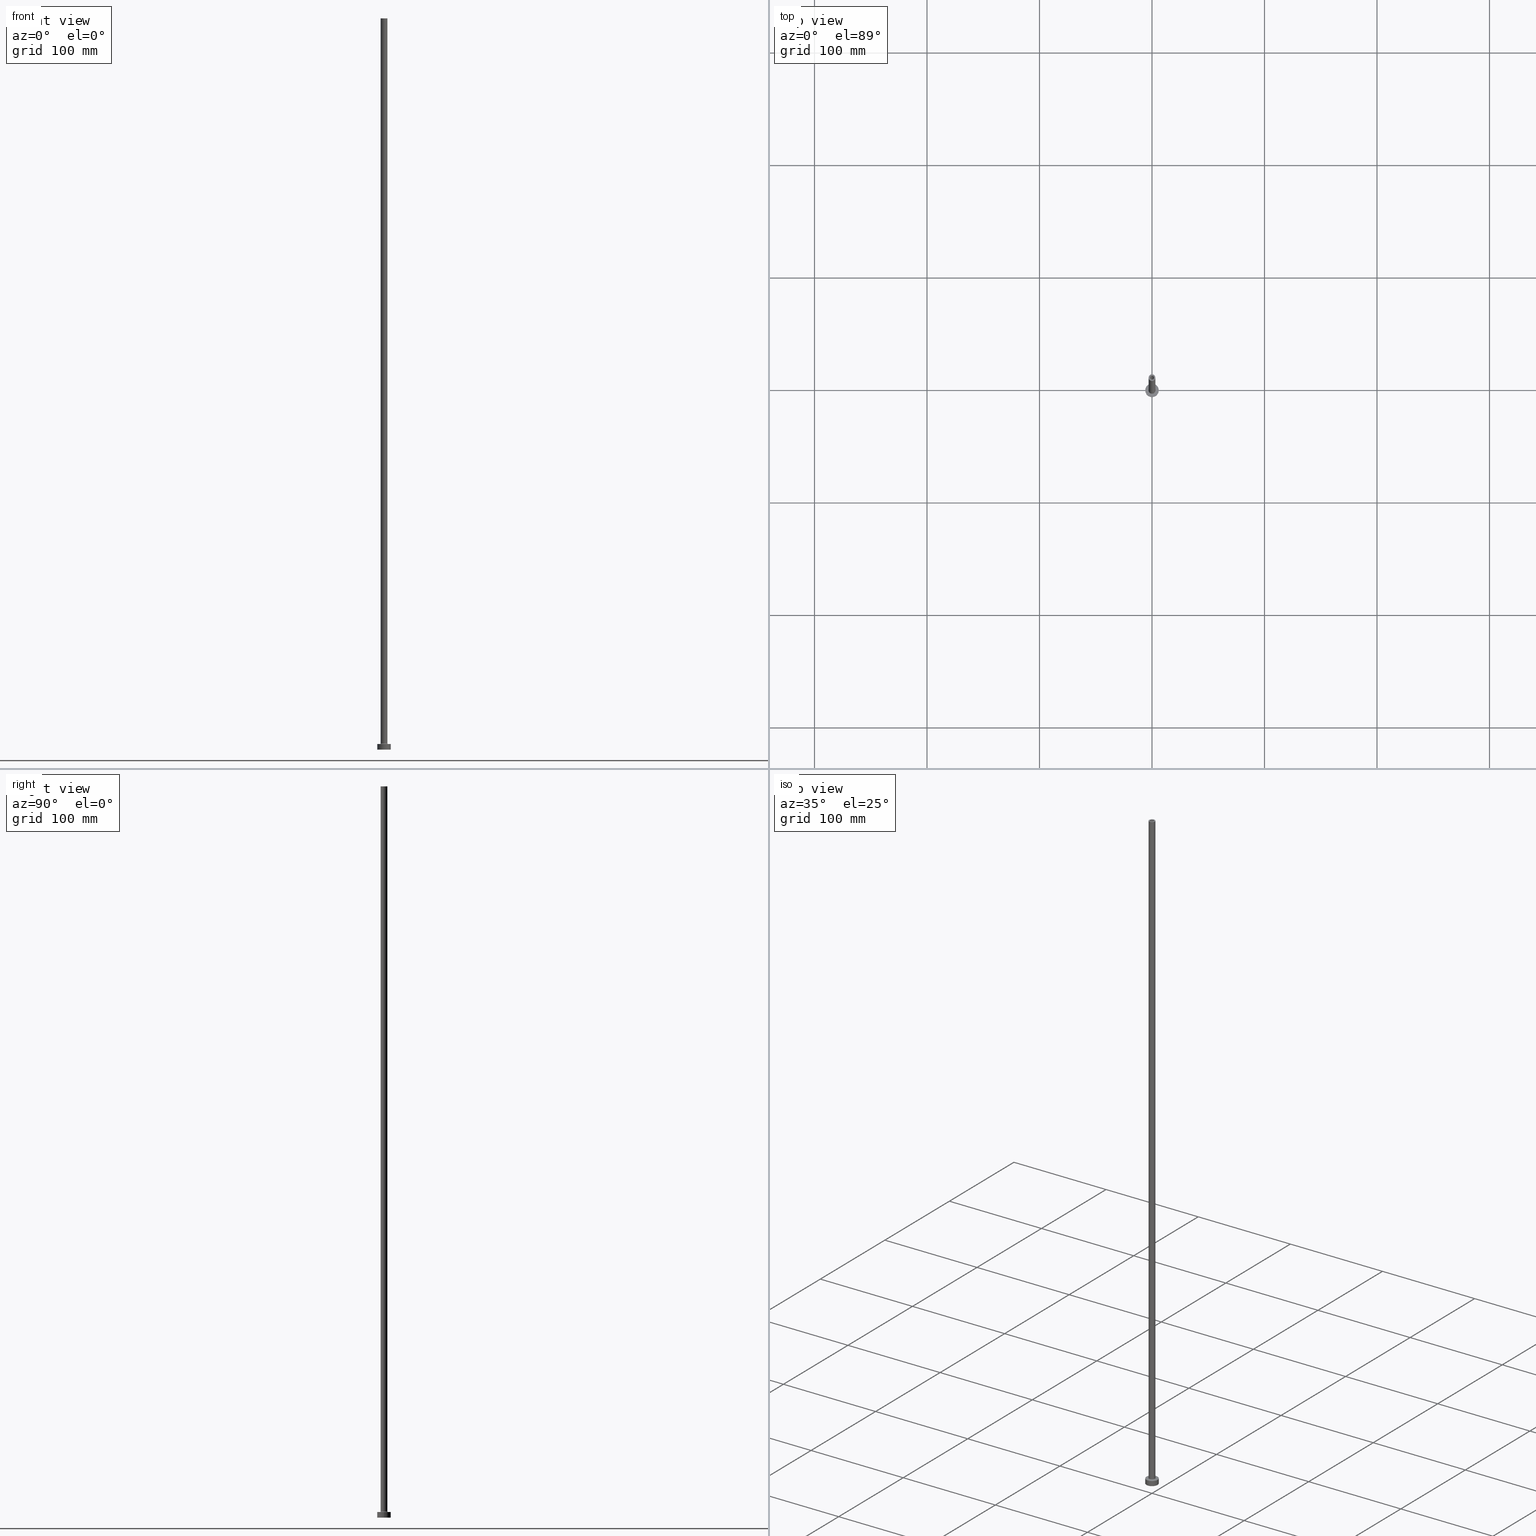
[diagram: canonical four-view strip — front | top / right | iso, engineering-drawing reading convention]
A machine part, canonical four-view strip (front | top / right | iso — engineering-drawing reading convention). The complete STEP part file that produces these views, byte-faithful:
ISO-10303-21;
HEADER;
FILE_DESCRIPTION (( 'STEP AP203' ),
    '1' );
FILE_NAME ('24ba.STEP',
    '2023-02-13T17:48:13',
    ( '' ),
    ( '' ),
    'SwSTEP 2.0',
    'SolidWorks 2019',
    '' );
FILE_SCHEMA (( 'CONFIG_CONTROL_DESIGN' ));
ENDSEC;

DATA;
#1 = CARTESIAN_POINT ( 'NONE',  ( 6.000000000000000888, 7.347880794884120722E-16, 5.000000000000000000 ) ) ;
#2 = CARTESIAN_POINT ( 'NONE',  ( 1.750000000000000000, 2.143131898507868297E-16, 605.0000000000000000 ) ) ;
#3 = EDGE_CURVE ( 'NONE', #349, #273, #200, .T. ) ;
#4 = AXIS2_PLACEMENT_3D ( 'NONE', #12, #399, #224 ) ;
#5 = DIRECTION ( 'NONE',  ( 0.000000000000000000, -1.000000000000000000, 0.000000000000000000 ) ) ;
#6 = CARTESIAN_POINT ( 'NONE',  ( 0.000000000000000000, 0.000000000000000000, 0.000000000000000000 ) ) ;
#7 = COORDINATED_UNIVERSAL_TIME_OFFSET ( 1, 0, .AHEAD. ) ;
#8 = CIRCLE ( 'NONE', #410, 3.500000000000000444 ) ;
#9 = EDGE_CURVE ( 'NONE', #301, #290, #303, .T. ) ;
#10 = CARTESIAN_POINT ( 'NONE',  ( 3.000000000000000444, 3.673940397442059868E-16, 5.499999999999949374 ) ) ;
#11 = LOCAL_TIME ( 18, 48, 13.00000000000000000, #7 ) ;
#12 = CARTESIAN_POINT ( 'NONE',  ( -3.500000000000000444, 4.286263797015737088E-16, 5.499999999999949374 ) ) ;
#13 = PERSON_AND_ORGANIZATION_ROLE ( 'classification_officer' ) ;
#14 = DIRECTION ( 'NONE',  ( 0.000000000000000000, 0.000000000000000000, 1.000000000000000000 ) ) ;
#15 = EDGE_LOOP ( 'NONE', ( #196, #319, #89, #237 ) ) ;
#16 = DIRECTION ( 'NONE',  ( -1.000000000000000000, 0.000000000000000000, 0.000000000000000000 ) ) ;
#17 = PRODUCT ( '24ba', '24ba', '', ( #415 ) ) ;
#18 = CARTESIAN_POINT ( 'NONE',  ( 0.000000000000000000, 0.000000000000000000, 5.000000000000000000 ) ) ;
#19 = VERTEX_POINT ( 'NONE', #180 ) ;
#20 = COORDINATED_UNIVERSAL_TIME_OFFSET ( 1, 0, .AHEAD. ) ;
#21 = DIRECTION ( 'NONE',  ( 1.000000000000000000, 0.000000000000000000, -0.000000000000000000 ) ) ;
#22 = EDGE_LOOP ( 'NONE', ( #136, #112 ) ) ;
#23 = ADVANCED_FACE ( 'NONE', ( #85 ), #421, .F. ) ;
#24 = AXIS2_PLACEMENT_3D ( 'NONE', #342, #308, #382 ) ;
#25 =( NAMED_UNIT ( * ) PLANE_ANGLE_UNIT ( ) SI_UNIT ( $, .RADIAN. ) );
#26 = EDGE_LOOP ( 'NONE', ( #210, #135, #245, #260 ) ) ;
#27 = VERTEX_POINT ( 'NONE', #461 ) ;
#28 = PERSON_AND_ORGANIZATION ( #171, #414 ) ;
#29 = CC_DESIGN_PERSON_AND_ORGANIZATION_ASSIGNMENT ( #84, #292, ( #436 ) ) ;
#30 = CARTESIAN_POINT ( 'NONE',  ( 0.000000000000000000, 0.000000000000000000, 5.499999999999949374 ) ) ;
#31 = CARTESIAN_POINT ( 'NONE',  ( -1.750000000000000000, 0.000000000000000000, 605.0000000000000000 ) ) ;
#32 = CYLINDRICAL_SURFACE ( 'NONE', #99, 1.750000000000000000 ) ;
#33 = LOCAL_TIME ( 18, 48, 13.00000000000000000, #212 ) ;
#34 = DIRECTION ( 'NONE',  ( 1.000000000000000000, 0.000000000000000000, 0.000000000000000000 ) ) ;
#35 = CARTESIAN_POINT ( 'NONE',  ( 0.000000000000000000, 0.000000000000000000, 0.000000000000000000 ) ) ;
#36 = ADVANCED_FACE ( 'NONE', ( #285, #393 ), #80, .T. ) ;
#37 = DIRECTION ( 'NONE',  ( 0.000000000000000000, 0.000000000000000000, 1.000000000000000000 ) ) ;
#38 = CARTESIAN_POINT ( 'NONE',  ( 0.000000000000000000, 0.000000000000000000, 0.000000000000000000 ) ) ;
#39 = AXIS2_PLACEMENT_3D ( 'NONE', #442, #14, #159 ) ;
#40 = VECTOR ( 'NONE', #44, 1000.000000000000000 ) ;
#41 = CARTESIAN_POINT ( 'NONE',  ( 3.000000000000000444, 3.673940397442059868E-16, 650.0000000000000000 ) ) ;
#42 = DIRECTION ( 'NONE',  ( 0.000000000000000000, 0.000000000000000000, 1.000000000000000000 ) ) ;
#43 = VERTEX_POINT ( 'NONE', #71 ) ;
#44 = DIRECTION ( 'NONE',  ( 0.000000000000000000, 0.000000000000000000, -1.000000000000000000 ) ) ;
#45 = EDGE_CURVE ( 'NONE', #19, #443, #70, .T. ) ;
#46 = PERSON_AND_ORGANIZATION ( #171, #414 ) ;
#47 = DIRECTION ( 'NONE',  ( 0.000000000000000000, 0.000000000000000000, 1.000000000000000000 ) ) ;
#48 = ORIENTED_EDGE ( 'NONE', *, *, #352, .F. ) ;
#49 = FACE_OUTER_BOUND ( 'NONE', #358, .T. ) ;
#50 = CARTESIAN_POINT ( 'NONE',  ( -1.899999999999999911, 0.000000000000000000, 0.000000000000000000 ) ) ;
#51 = CARTESIAN_POINT ( 'NONE',  ( 0.000000000000000000, 0.000000000000000000, 605.0000000000000000 ) ) ;
#52 = VECTOR ( 'NONE', #250, 1000.000000000000000 ) ;
#53 = FACE_OUTER_BOUND ( 'NONE', #117, .T. ) ;
#54 = ORIENTED_EDGE ( 'NONE', *, *, #367, .T. ) ;
#55 = DIRECTION ( 'NONE',  ( 0.000000000000000000, 0.000000000000000000, -1.000000000000000000 ) ) ;
#56 = CC_DESIGN_PERSON_AND_ORGANIZATION_ASSIGNMENT ( #361, #13, ( #152 ) ) ;
#57 = CALENDAR_DATE ( 2023, 13, 2 ) ;
#58 = DIRECTION ( 'NONE',  ( 1.000000000000000000, 0.000000000000000000, 0.000000000000000000 ) ) ;
#59 = AXIS2_PLACEMENT_3D ( 'NONE', #339, #102, #207 ) ;
#60 = EDGE_CURVE ( 'NONE', #43, #217, #189, .T. ) ;
#61 = AXIS2_PLACEMENT_3D ( 'NONE', #241, #154, #278 ) ;
#62 = DIRECTION ( 'NONE',  ( 1.000000000000000000, 0.000000000000000000, 0.000000000000000000 ) ) ;
#63 = DIRECTION ( 'NONE',  ( -0.000000000000000000, -0.000000000000000000, -1.000000000000000000 ) ) ;
#64 = AXIS2_PLACEMENT_3D ( 'NONE', #324, #181, #119 ) ;
#65 = ADVANCED_FACE ( 'NONE', ( #148 ), #386, .T. ) ;
#66 = DIRECTION ( 'NONE',  ( 0.000000000000000000, 0.000000000000000000, -1.000000000000000000 ) ) ;
#67 = VERTEX_POINT ( 'NONE', #1 ) ;
#68 =( LENGTH_UNIT ( ) NAMED_UNIT ( * ) SI_UNIT ( .MILLI., .METRE. ) );
#69 = ORIENTED_EDGE ( 'NONE', *, *, #93, .T. ) ;
#70 = CIRCLE ( 'NONE', #167, 1.750000000000000000 ) ;
#71 = CARTESIAN_POINT ( 'NONE',  ( -6.000000000000000888, 0.000000000000000000, 0.000000000000000000 ) ) ;
#72 = CC_DESIGN_APPROVAL ( #139, ( #436 ) ) ;
#73 = APPROVAL_ROLE ( '' ) ;
#74 = EDGE_CURVE ( 'NONE', #331, #273, #8, .T. ) ;
#75 = CARTESIAN_POINT ( 'NONE',  ( 0.000000000000000000, 0.000000000000000000, 650.0000000000000000 ) ) ;
#76 = CARTESIAN_POINT ( 'NONE',  ( 0.000000000000000000, 0.000000000000000000, 0.000000000000000000 ) ) ;
#77 = DIRECTION ( 'NONE',  ( -0.000000000000000000, -0.000000000000000000, -1.000000000000000000 ) ) ;
#78 = DIRECTION ( 'NONE',  ( 1.000000000000000000, 0.000000000000000000, 0.000000000000000000 ) ) ;
#79 = SHAPE_DEFINITION_REPRESENTATION ( #94, #166 ) ;
#80 = PLANE ( 'NONE',  #158 ) ;
#81 = CIRCLE ( 'NONE', #197, 3.500000000000000444 ) ;
#82 = CC_DESIGN_DATE_AND_TIME_ASSIGNMENT ( #429, #209, ( #400 ) ) ;
#83 = AXIS2_PLACEMENT_3D ( 'NONE', #345, #385, #34 ) ;
#84 = PERSON_AND_ORGANIZATION ( #171, #414 ) ;
#85 = FACE_OUTER_BOUND ( 'NONE', #341, .T. ) ;
#86 = DIRECTION ( 'NONE',  ( -0.000000000000000000, -0.000000000000000000, -1.000000000000000000 ) ) ;
#87 = EDGE_LOOP ( 'NONE', ( #131, #459, #145, #430 ) ) ;
#88 = CYLINDRICAL_SURFACE ( 'NONE', #306, 6.000000000000000888 ) ;
#89 = ORIENTED_EDGE ( 'NONE', *, *, #373, .T. ) ;
#90 = FACE_OUTER_BOUND ( 'NONE', #248, .T. ) ;
#91 = CIRCLE ( 'NONE', #406, 6.000000000000000888 ) ;
#92 = PERSON_AND_ORGANIZATION ( #171, #414 ) ;
#93 = EDGE_CURVE ( 'NONE', #19, #376, #95, .T. ) ;
#94 = PRODUCT_DEFINITION_SHAPE ( 'NONE', 'NONE',  #400 ) ;
#95 = LINE ( 'NONE', #440, #249 ) ;
#96 = CLOSED_SHELL ( 'NONE', ( #453, #243, #271, #65, #362, #389, #163, #379, #229, #36, #23, #408, #129, #225 ) ) ;
#97 = DATE_AND_TIME ( #156, #138 ) ;
#98 = EDGE_CURVE ( 'NONE', #443, #456, #256, .T. ) ;
#99 = AXIS2_PLACEMENT_3D ( 'NONE', #424, #177, #247 ) ;
#100 = APPROVAL_PERSON_ORGANIZATION ( #274, #295, #73 ) ;
#101 = FACE_OUTER_BOUND ( 'NONE', #140, .T. ) ;
#102 = DIRECTION ( 'NONE',  ( 0.000000000000000000, 0.000000000000000000, 1.000000000000000000 ) ) ;
#103 = PRODUCT_RELATED_PRODUCT_CATEGORY ( 'detail', '', ( #17 ) ) ;
#104 = ORIENTED_EDGE ( 'NONE', *, *, #170, .F. ) ;
#105 = VERTEX_POINT ( 'NONE', #50 ) ;
#106 = DIRECTION ( 'NONE',  ( 0.000000000000000000, 0.000000000000000000, -1.000000000000000000 ) ) ;
#107 = ORIENTED_EDGE ( 'NONE', *, *, #113, .T. ) ;
#108 = ORIENTED_EDGE ( 'NONE', *, *, #60, .F. ) ;
#109 = CARTESIAN_POINT ( 'NONE',  ( -3.000000000000000444, 0.000000000000000000, 5.499999999999949374 ) ) ;
#110 = CARTESIAN_POINT ( 'NONE',  ( -1.899999999999999911, 0.000000000000000000, 605.0000000000000000 ) ) ;
#111 = CYLINDRICAL_SURFACE ( 'NONE', #344, 3.000000000000000444 ) ;
#112 = ORIENTED_EDGE ( 'NONE', *, *, #74, .T. ) ;
#113 = EDGE_CURVE ( 'NONE', #458, #27, #326, .T. ) ;
#114 = LINE ( 'NONE', #387, #52 ) ;
#115 = AXIS2_PLACEMENT_3D ( 'NONE', #187, #37, #78 ) ;
#116 = DIRECTION ( 'NONE',  ( -0.000000000000000000, -0.000000000000000000, -1.000000000000000000 ) ) ;
#117 = EDGE_LOOP ( 'NONE', ( #173, #325 ) ) ;
#118 = FACE_OUTER_BOUND ( 'NONE', #183, .T. ) ;
#119 = DIRECTION ( 'NONE',  ( 1.000000000000000000, 0.000000000000000000, 0.000000000000000000 ) ) ;
#120 = APPROVAL_DATE_TIME ( #433, #139 ) ;
#121 = CARTESIAN_POINT ( 'NONE',  ( 0.000000000000000000, 0.000000000000000000, 650.0000000000000000 ) ) ;
#122 = LINE ( 'NONE', #284, #40 ) ;
#123 = AXIS2_PLACEMENT_3D ( 'NONE', #30, #371, #62 ) ;
#124 = UNCERTAINTY_MEASURE_WITH_UNIT (LENGTH_MEASURE( 1.000000000000000082E-05 ), #68, 'distance_accuracy_value', 'NONE');
#125 = CARTESIAN_POINT ( 'NONE',  ( 0.000000000000000000, 0.000000000000000000, 605.0000000000000000 ) ) ;
#126 = ORIENTED_EDGE ( 'NONE', *, *, #45, .F. ) ;
#127 = DIRECTION ( 'NONE',  ( -0.000000000000000000, -0.000000000000000000, -1.000000000000000000 ) ) ;
#128 = FACE_BOUND ( 'NONE', #265, .T. ) ;
#129 = ADVANCED_FACE ( 'NONE', ( #128, #190 ), #259, .F. ) ;
#130 = CARTESIAN_POINT ( 'NONE',  ( 0.000000000000000000, 0.000000000000000000, 605.0000000000000000 ) ) ;
#131 = ORIENTED_EDGE ( 'NONE', *, *, #334, .F. ) ;
#132 = LOCAL_TIME ( 18, 48, 13.00000000000000000, #366 ) ;
#133 = CARTESIAN_POINT ( 'NONE',  ( 0.000000000000000000, 0.000000000000000000, 5.000000000000000000 ) ) ;
#134 = PLANE ( 'NONE',  #236 ) ;
#135 = ORIENTED_EDGE ( 'NONE', *, *, #45, .T. ) ;
#136 = ORIENTED_EDGE ( 'NONE', *, *, #216, .T. ) ;
#137 = CIRCLE ( 'NONE', #83, 3.000000000000000444 ) ;
#138 = LOCAL_TIME ( 18, 48, 13.00000000000000000, #20 ) ;
#139 = APPROVAL ( #186, 'NEUR�EN�' ) ;
#140 = EDGE_LOOP ( 'NONE', ( #107, #54, #454, #449 ) ) ;
#141 = ORIENTED_EDGE ( 'NONE', *, *, #352, .T. ) ;
#142 = CIRCLE ( 'NONE', #395, 1.750000000000000000 ) ;
#143 = CARTESIAN_POINT ( 'NONE',  ( 0.000000000000000000, 0.000000000000000000, 650.0000000000000000 ) ) ;
#144 = DIRECTION ( 'NONE',  ( 1.000000000000000000, 0.000000000000000000, 0.000000000000000000 ) ) ;
#145 = ORIENTED_EDGE ( 'NONE', *, *, #233, .T. ) ;
#146 = CC_DESIGN_PERSON_AND_ORGANIZATION_ASSIGNMENT ( #46, #323, ( #400 ) ) ;
#147 = ORIENTED_EDGE ( 'NONE', *, *, #330, .T. ) ;
#148 = FACE_OUTER_BOUND ( 'NONE', #338, .T. ) ;
#149 = ORIENTED_EDGE ( 'NONE', *, *, #238, .F. ) ;
#150 = DIRECTION ( 'NONE',  ( -0.000000000000000000, -0.000000000000000000, -1.000000000000000000 ) ) ;
#151 = CARTESIAN_POINT ( 'NONE',  ( 3.000000000000000444, 3.673940397442059868E-16, 650.0000000000000000 ) ) ;
#152 = SECURITY_CLASSIFICATION ( '', '', #401 ) ;
#153 = EDGE_CURVE ( 'NONE', #27, #458, #168, .T. ) ;
#154 = DIRECTION ( 'NONE',  ( 0.000000000000000000, 0.000000000000000000, 1.000000000000000000 ) ) ;
#155 = FACE_OUTER_BOUND ( 'NONE', #87, .T. ) ;
#156 = CALENDAR_DATE ( 2023, 13, 2 ) ;
#157 = EDGE_CURVE ( 'NONE', #283, #67, #174, .T. ) ;
#158 = AXIS2_PLACEMENT_3D ( 'NONE', #222, #220, #381 ) ;
#159 = DIRECTION ( 'NONE',  ( 1.000000000000000000, 0.000000000000000000, -0.000000000000000000 ) ) ;
#160 = ORIENTED_EDGE ( 'NONE', *, *, #444, .F. ) ;
#161 = CIRCLE ( 'NONE', #272, 1.899999999999999911 ) ;
#162 = CIRCLE ( 'NONE', #64, 3.000000000000000444 ) ;
#163 = ADVANCED_FACE ( 'NONE', ( #332, #53 ), #134, .T. ) ;
#164 = DATE_AND_TIME ( #57, #132 ) ;
#165 = MANIFOLD_SOLID_BREP ( 'Odebrat vysunut�m4', #96 ) ;
#166 = ADVANCED_BREP_SHAPE_REPRESENTATION ( '24ba', ( #165, #59 ), #253 ) ;
#167 = AXIS2_PLACEMENT_3D ( 'NONE', #418, #42, #357 ) ;
#168 = CIRCLE ( 'NONE', #374, 1.899999999999999911 ) ;
#169 = CIRCLE ( 'NONE', #115, 6.000000000000000888 ) ;
#170 = EDGE_CURVE ( 'NONE', #105, #262, #161, .T. ) ;
#171 = PERSON ( 'NEUR�EN�', 'NEUR�EN�', 'NEUR�EN�', ('NEUR�EN�'), ('NEUR�EN�'), ('NEUR�EN�') ) ;
#172 = ORIENTED_EDGE ( 'NONE', *, *, #153, .T. ) ;
#173 = ORIENTED_EDGE ( 'NONE', *, *, #157, .T. ) ;
#174 = CIRCLE ( 'NONE', #447, 6.000000000000000888 ) ;
#175 = CC_DESIGN_PERSON_AND_ORGANIZATION_ASSIGNMENT ( #28, #457, ( #17 ) ) ;
#176 = LOCAL_TIME ( 18, 48, 13.00000000000000000, #317 ) ;
#177 = DIRECTION ( 'NONE',  ( 0.000000000000000000, 0.000000000000000000, -1.000000000000000000 ) ) ;
#178 = DIRECTION ( 'NONE',  ( 1.000000000000000000, 0.000000000000000000, 0.000000000000000000 ) ) ;
#179 = DATE_AND_TIME ( #348, #33 ) ;
#180 = CARTESIAN_POINT ( 'NONE',  ( 1.750000000000000000, 2.143131898507868297E-16, 650.0000000000000000 ) ) ;
#181 = DIRECTION ( 'NONE',  ( 0.000000000000000000, 0.000000000000000000, 1.000000000000000000 ) ) ;
#182 = DIRECTION ( 'NONE',  ( -0.000000000000000000, -0.000000000000000000, -1.000000000000000000 ) ) ;
#183 = EDGE_LOOP ( 'NONE', ( #108, #294 ) ) ;
#184 = DIRECTION ( 'NONE',  ( 0.000000000000000000, 0.000000000000000000, 1.000000000000000000 ) ) ;
#185 = CIRCLE ( 'NONE', #355, 1.750000000000000000 ) ;
#186 = APPROVAL_STATUS ( 'not_yet_approved' ) ;
#187 = CARTESIAN_POINT ( 'NONE',  ( 0.000000000000000000, 0.000000000000000000, 5.000000000000000000 ) ) ;
#188 = DESIGN_CONTEXT ( 'detailed design', #300, 'design' ) ;
#189 = CIRCLE ( 'NONE', #313, 6.000000000000000888 ) ;
#190 = FACE_OUTER_BOUND ( 'NONE', #270, .T. ) ;
#191 = CC_DESIGN_DATE_AND_TIME_ASSIGNMENT ( #97, #445, ( #152 ) ) ;
#192 = DIRECTION ( 'NONE',  ( -0.000000000000000000, -0.000000000000000000, -1.000000000000000000 ) ) ;
#193 = DIRECTION ( 'NONE',  ( 0.000000000000000000, 0.000000000000000000, -1.000000000000000000 ) ) ;
#194 = CYLINDRICAL_SURFACE ( 'NONE', #363, 6.000000000000000888 ) ;
#195 = DIRECTION ( 'NONE',  ( 1.000000000000000000, 0.000000000000000000, 0.000000000000000000 ) ) ;
#196 = ORIENTED_EDGE ( 'NONE', *, *, #310, .F. ) ;
#197 = AXIS2_PLACEMENT_3D ( 'NONE', #280, #116, #144 ) ;
#198 = AXIS2_PLACEMENT_3D ( 'NONE', #38, #184, #320 ) ;
#199 = ORIENTED_EDGE ( 'NONE', *, *, #3, .F. ) ;
#200 = CIRCLE ( 'NONE', #261, 0.5000000000000004441 ) ;
#201 = EDGE_CURVE ( 'NONE', #301, #349, #275, .T. ) ;
#202 = DIRECTION ( 'NONE',  ( 1.000000000000000000, 0.000000000000000000, 0.000000000000000000 ) ) ;
#203 = CC_DESIGN_APPROVAL ( #428, ( #152 ) ) ;
#204 = ORIENTED_EDGE ( 'NONE', *, *, #201, .T. ) ;
#205 = CYLINDRICAL_SURFACE ( 'NONE', #337, 1.899999999999999911 ) ;
#206 = CARTESIAN_POINT ( 'NONE',  ( 0.000000000000000000, 0.000000000000000000, 610.3740115370177364 ) ) ;
#207 = DIRECTION ( 'NONE',  ( 1.000000000000000000, 0.000000000000000000, 0.000000000000000000 ) ) ;
#208 = AXIS2_PLACEMENT_3D ( 'NONE', #75, #213, #314 ) ;
#209 = DATE_TIME_ROLE ( 'creation_date' ) ;
#210 = ORIENTED_EDGE ( 'NONE', *, *, #93, .F. ) ;
#211 = CIRCLE ( 'NONE', #24, 1.750000000000000000 ) ;
#212 = COORDINATED_UNIVERSAL_TIME_OFFSET ( 1, 0, .AHEAD. ) ;
#213 = DIRECTION ( 'NONE',  ( -0.000000000000000000, -0.000000000000000000, -1.000000000000000000 ) ) ;
#214 = ORIENTED_EDGE ( 'NONE', *, *, #255, .T. ) ;
#215 = CARTESIAN_POINT ( 'NONE',  ( -6.000000000000000888, 0.000000000000000000, 5.000000000000000000 ) ) ;
#216 = EDGE_CURVE ( 'NONE', #273, #331, #81, .T. ) ;
#217 = VERTEX_POINT ( 'NONE', #417 ) ;
#218 = DIRECTION ( 'NONE',  ( 0.000000000000000000, 0.000000000000000000, 1.000000000000000000 ) ) ;
#219 = APPROVAL_DATE_TIME ( #179, #295 ) ;
#220 = DIRECTION ( 'NONE',  ( 0.000000000000000000, 0.000000000000000000, 1.000000000000000000 ) ) ;
#221 = CIRCLE ( 'NONE', #123, 3.000000000000000444 ) ;
#222 = CARTESIAN_POINT ( 'NONE',  ( 0.000000000000000000, 0.000000000000000000, 650.0000000000000000 ) ) ;
#223 = ORIENTED_EDGE ( 'NONE', *, *, #201, .F. ) ;
#224 = DIRECTION ( 'NONE',  ( -1.000000000000000000, 1.224646799147354440E-16, 0.000000000000000000 ) ) ;
#225 = ADVANCED_FACE ( 'NONE', ( #240 ), #32, .F. ) ;
#226 = CYLINDRICAL_SURFACE ( 'NONE', #423, 1.899999999999999911 ) ;
#227 = CIRCLE ( 'NONE', #4, 0.4999999999999995559 ) ;
#228 = DIRECTION ( 'NONE',  ( 0.000000000000000000, 0.000000000000000000, 1.000000000000000000 ) ) ;
#229 = ADVANCED_FACE ( 'NONE', ( #322 ), #111, .T. ) ;
#230 = APPROVAL_ROLE ( '' ) ;
#231 = DIRECTION ( 'NONE',  ( 0.000000000000000000, 0.000000000000000000, 1.000000000000000000 ) ) ;
#232 = DIRECTION ( 'NONE',  ( 1.000000000000000000, 0.000000000000000000, 0.000000000000000000 ) ) ;
#233 = EDGE_CURVE ( 'NONE', #283, #43, #288, .T. ) ;
#234 = DIRECTION ( 'NONE',  ( -1.000000000000000000, 0.000000000000000000, 0.000000000000000000 ) ) ;
#235 = CARTESIAN_POINT ( 'NONE',  ( 0.000000000000000000, 0.000000000000000000, 605.0000000000000000 ) ) ;
#236 = AXIS2_PLACEMENT_3D ( 'NONE', #133, #228, #21 ) ;
#237 = ORIENTED_EDGE ( 'NONE', *, *, #233, .F. ) ;
#238 = EDGE_CURVE ( 'NONE', #349, #257, #137, .T. ) ;
#239 = ORIENTED_EDGE ( 'NONE', *, *, #216, .F. ) ;
#240 = FACE_OUTER_BOUND ( 'NONE', #26, .T. ) ;
#241 = CARTESIAN_POINT ( 'NONE',  ( 0.000000000000000000, 0.000000000000000000, 5.499999999999949374 ) ) ;
#242 = ORIENTED_EDGE ( 'NONE', *, *, #113, .F. ) ;
#243 = ADVANCED_FACE ( 'NONE', ( #101 ), #205, .F. ) ;
#244 = ORIENTED_EDGE ( 'NONE', *, *, #3, .T. ) ;
#245 = ORIENTED_EDGE ( 'NONE', *, *, #98, .T. ) ;
#246 = CARTESIAN_POINT ( 'NONE',  ( 0.000000000000000000, 0.000000000000000000, 5.499999999999949374 ) ) ;
#247 = DIRECTION ( 'NONE',  ( -1.000000000000000000, 0.000000000000000000, 0.000000000000000000 ) ) ;
#248 = EDGE_LOOP ( 'NONE', ( #412, #172, #437, #252 ) ) ;
#249 = VECTOR ( 'NONE', #446, 1000.000000000000000 ) ;
#250 = DIRECTION ( 'NONE',  ( 0.000000000000000000, 0.000000000000000000, -1.000000000000000000 ) ) ;
#251 = PERSON_AND_ORGANIZATION ( #171, #414 ) ;
#252 = ORIENTED_EDGE ( 'NONE', *, *, #170, .T. ) ;
#253 =( GEOMETRIC_REPRESENTATION_CONTEXT ( 3 ) GLOBAL_UNCERTAINTY_ASSIGNED_CONTEXT ( ( #124 ) ) GLOBAL_UNIT_ASSIGNED_CONTEXT ( ( #68, #25, #312 ) ) REPRESENTATION_CONTEXT ( 'NONE', 'WORKASPACE' ) );
#254 = CARTESIAN_POINT ( 'NONE',  ( -3.500000000000000444, 4.286263797015737088E-16, 4.999999999999975131 ) ) ;
#255 = EDGE_CURVE ( 'NONE', #257, #349, #221, .T. ) ;
#256 = LINE ( 'NONE', #335, #378 ) ;
#257 = VERTEX_POINT ( 'NONE', #109 ) ;
#258 = DIRECTION ( 'NONE',  ( 1.000000000000000000, 0.000000000000000000, 0.000000000000000000 ) ) ;
#259 = PLANE ( 'NONE',  #39 ) ;
#260 = ORIENTED_EDGE ( 'NONE', *, *, #439, .F. ) ;
#261 = AXIS2_PLACEMENT_3D ( 'NONE', #388, #5, #434 ) ;
#262 = VERTEX_POINT ( 'NONE', #420 ) ;
#263 = VECTOR ( 'NONE', #63, 1000.000000000000000 ) ;
#264 = CARTESIAN_POINT ( 'NONE',  ( 0.000000000000000000, 0.000000000000000000, 0.000000000000000000 ) ) ;
#265 = EDGE_LOOP ( 'NONE', ( #370, #409 ) ) ;
#266 = AXIS2_PLACEMENT_3D ( 'NONE', #121, #397, #347 ) ;
#267 = APPROVAL_DATE_TIME ( #164, #428 ) ;
#268 = EDGE_CURVE ( 'NONE', #443, #19, #211, .T. ) ;
#269 = ORIENTED_EDGE ( 'NONE', *, *, #74, .F. ) ;
#270 = EDGE_LOOP ( 'NONE', ( #242, #411 ) ) ;
#271 = ADVANCED_FACE ( 'NONE', ( #49 ), #333, .F. ) ;
#272 = AXIS2_PLACEMENT_3D ( 'NONE', #264, #368, #58 ) ;
#273 = VERTEX_POINT ( 'NONE', #422 ) ;
#274 = PERSON_AND_ORGANIZATION ( #171, #414 ) ;
#275 = LINE ( 'NONE', #41, #435 ) ;
#276 = APPROVAL_ROLE ( '' ) ;
#277 = ORIENTED_EDGE ( 'NONE', *, *, #321, .F. ) ;
#278 = DIRECTION ( 'NONE',  ( 1.000000000000000000, 0.000000000000000000, 0.000000000000000000 ) ) ;
#279 = EDGE_CURVE ( 'NONE', #262, #105, #451, .T. ) ;
#280 = CARTESIAN_POINT ( 'NONE',  ( 0.000000000000000000, 0.000000000000000000, 5.000000000000000000 ) ) ;
#281 = CARTESIAN_POINT ( 'NONE',  ( 0.000000000000000000, 0.000000000000000000, 5.000000000000000000 ) ) ;
#282 = AXIS2_PLACEMENT_3D ( 'NONE', #246, #390, #438 ) ;
#283 = VERTEX_POINT ( 'NONE', #215 ) ;
#284 = CARTESIAN_POINT ( 'NONE',  ( -1.899999999999999911, 0.000000000000000000, 610.3740115370177364 ) ) ;
#285 = FACE_BOUND ( 'NONE', #394, .T. ) ;
#286 = ORIENTED_EDGE ( 'NONE', *, *, #330, .F. ) ;
#287 = LINE ( 'NONE', #431, #293 ) ;
#288 = LINE ( 'NONE', #380, #327 ) ;
#289 = CALENDAR_DATE ( 2023, 13, 2 ) ;
#290 = VERTEX_POINT ( 'NONE', #291 ) ;
#291 = CARTESIAN_POINT ( 'NONE',  ( -3.000000000000000444, 0.000000000000000000, 650.0000000000000000 ) ) ;
#292 = PERSON_AND_ORGANIZATION_ROLE ( 'design_supplier' ) ;
#293 = VECTOR ( 'NONE', #86, 1000.000000000000000 ) ;
#294 = ORIENTED_EDGE ( 'NONE', *, *, #373, .F. ) ;
#295 = APPROVAL ( #383, 'NEUR�EN�' ) ;
#296 = DIRECTION ( 'NONE',  ( 1.000000000000000000, 0.000000000000000000, 0.000000000000000000 ) ) ;
#297 = APPROVAL_PERSON_ORGANIZATION ( #392, #139, #276 ) ;
#298 = DIRECTION ( 'NONE',  ( 0.000000000000000000, 0.000000000000000000, 1.000000000000000000 ) ) ;
#299 = ORIENTED_EDGE ( 'NONE', *, *, #9, .F. ) ;
#300 = APPLICATION_CONTEXT ( 'configuration controlled 3d designs of mechanical parts and assemblies' ) ;
#301 = VERTEX_POINT ( 'NONE', #151 ) ;
#302 = EDGE_CURVE ( 'NONE', #458, #105, #122, .T. ) ;
#303 = CIRCLE ( 'NONE', #266, 3.000000000000000444 ) ;
#304 = ORIENTED_EDGE ( 'NONE', *, *, #268, .F. ) ;
#305 = EDGE_LOOP ( 'NONE', ( #104, #452 ) ) ;
#306 = AXIS2_PLACEMENT_3D ( 'NONE', #360, #192, #328 ) ;
#307 = ORIENTED_EDGE ( 'NONE', *, *, #444, .T. ) ;
#308 = DIRECTION ( 'NONE',  ( 0.000000000000000000, 0.000000000000000000, 1.000000000000000000 ) ) ;
#309 = CYLINDRICAL_SURFACE ( 'NONE', #353, 1.750000000000000000 ) ;
#310 = EDGE_CURVE ( 'NONE', #67, #283, #169, .T. ) ;
#311 = ORIENTED_EDGE ( 'NONE', *, *, #98, .F. ) ;
#312 =( NAMED_UNIT ( * ) SI_UNIT ( $, .STERADIAN. ) SOLID_ANGLE_UNIT ( ) );
#313 = AXIS2_PLACEMENT_3D ( 'NONE', #35, #47, #178 ) ;
#314 = DIRECTION ( 'NONE',  ( -1.000000000000000000, 0.000000000000000000, 0.000000000000000000 ) ) ;
#315 = DIRECTION ( 'NONE',  ( 1.000000000000000000, 0.000000000000000000, 0.000000000000000000 ) ) ;
#316 = DIRECTION ( 'NONE',  ( -1.000000000000000000, 0.000000000000000000, 0.000000000000000000 ) ) ;
#317 = COORDINATED_UNIVERSAL_TIME_OFFSET ( 1, 0, .AHEAD. ) ;
#318 = APPROVAL_PERSON_ORGANIZATION ( #92, #428, #230 ) ;
#319 = ORIENTED_EDGE ( 'NONE', *, *, #334, .T. ) ;
#320 = DIRECTION ( 'NONE',  ( 1.000000000000000000, 0.000000000000000000, -0.000000000000000000 ) ) ;
#321 = EDGE_CURVE ( 'NONE', #456, #376, #185, .T. ) ;
#322 = FACE_OUTER_BOUND ( 'NONE', #419, .T. ) ;
#323 = PERSON_AND_ORGANIZATION_ROLE ( 'creator' ) ;
#324 = CARTESIAN_POINT ( 'NONE',  ( 0.000000000000000000, 0.000000000000000000, 650.0000000000000000 ) ) ;
#325 = ORIENTED_EDGE ( 'NONE', *, *, #310, .T. ) ;
#326 = CIRCLE ( 'NONE', #450, 1.899999999999999911 ) ;
#327 = VECTOR ( 'NONE', #432, 1000.000000000000000 ) ;
#328 = DIRECTION ( 'NONE',  ( -1.000000000000000000, 0.000000000000000000, 0.000000000000000000 ) ) ;
#329 = DIRECTION ( 'NONE',  ( -0.000000000000000000, -0.000000000000000000, -1.000000000000000000 ) ) ;
#330 = EDGE_CURVE ( 'NONE', #290, #301, #162, .T. ) ;
#331 = VERTEX_POINT ( 'NONE', #254 ) ;
#332 = FACE_BOUND ( 'NONE', #22, .T. ) ;
#333 = TOROIDAL_SURFACE ( 'NONE', #282, 3.500000000000000444, 0.5000000000000000000 ) ;
#334 = EDGE_CURVE ( 'NONE', #67, #217, #287, .T. ) ;
#335 = CARTESIAN_POINT ( 'NONE',  ( -1.750000000000000000, 0.000000000000000000, 650.0000000000000000 ) ) ;
#336 = CARTESIAN_POINT ( 'NONE',  ( -1.750000000000000000, 0.000000000000000000, 650.0000000000000000 ) ) ;
#337 = AXIS2_PLACEMENT_3D ( 'NONE', #206, #106, #340 ) ;
#338 = EDGE_LOOP ( 'NONE', ( #299, #204, #416, #160 ) ) ;
#339 = CARTESIAN_POINT ( 'NONE',  ( 0.000000000000000000, 0.000000000000000000, 0.000000000000000000 ) ) ;
#340 = DIRECTION ( 'NONE',  ( -1.000000000000000000, 0.000000000000000000, 0.000000000000000000 ) ) ;
#341 = EDGE_LOOP ( 'NONE', ( #48, #149, #244, #269 ) ) ;
#342 = CARTESIAN_POINT ( 'NONE',  ( 0.000000000000000000, 0.000000000000000000, 650.0000000000000000 ) ) ;
#343 = LINE ( 'NONE', #455, #263 ) ;
#344 = AXIS2_PLACEMENT_3D ( 'NONE', #391, #182, #316 ) ;
#345 = CARTESIAN_POINT ( 'NONE',  ( 0.000000000000000000, 0.000000000000000000, 5.499999999999949374 ) ) ;
#346 = CC_DESIGN_PERSON_AND_ORGANIZATION_ASSIGNMENT ( #251, #396, ( #436 ) ) ;
#347 = DIRECTION ( 'NONE',  ( 1.000000000000000000, 0.000000000000000000, 0.000000000000000000 ) ) ;
#348 = CALENDAR_DATE ( 2023, 13, 2 ) ;
#349 = VERTEX_POINT ( 'NONE', #10 ) ;
#350 = DIRECTION ( 'NONE',  ( 0.000000000000000000, 0.000000000000000000, 1.000000000000000000 ) ) ;
#351 = PLANE ( 'NONE',  #198 ) ;
#352 = EDGE_CURVE ( 'NONE', #257, #331, #227, .T. ) ;
#353 = AXIS2_PLACEMENT_3D ( 'NONE', #143, #66, #460 ) ;
#354 = CALENDAR_DATE ( 2023, 13, 2 ) ;
#355 = AXIS2_PLACEMENT_3D ( 'NONE', #51, #218, #258 ) ;
#356 = DIRECTION ( 'NONE',  ( 1.000000000000000000, 0.000000000000000000, 0.000000000000000000 ) ) ;
#357 = DIRECTION ( 'NONE',  ( 1.000000000000000000, 0.000000000000000000, 0.000000000000000000 ) ) ;
#358 = EDGE_LOOP ( 'NONE', ( #413, #141, #239, #199 ) ) ;
#359 = FACE_OUTER_BOUND ( 'NONE', #15, .T. ) ;
#360 = CARTESIAN_POINT ( 'NONE',  ( 0.000000000000000000, 0.000000000000000000, 5.000000000000000000 ) ) ;
#361 = PERSON_AND_ORGANIZATION ( #171, #414 ) ;
#362 = ADVANCED_FACE ( 'NONE', ( #359 ), #88, .T. ) ;
#363 = AXIS2_PLACEMENT_3D ( 'NONE', #441, #329, #16 ) ;
#364 = EDGE_LOOP ( 'NONE', ( #405, #69, #277, #311 ) ) ;
#365 = CARTESIAN_POINT ( 'NONE',  ( 0.000000000000000000, 0.000000000000000000, 610.3740115370177364 ) ) ;
#366 = COORDINATED_UNIVERSAL_TIME_OFFSET ( 1, 0, .AHEAD. ) ;
#367 = EDGE_CURVE ( 'NONE', #27, #262, #114, .T. ) ;
#368 = DIRECTION ( 'NONE',  ( -0.000000000000000000, -0.000000000000000000, -1.000000000000000000 ) ) ;
#369 = CC_DESIGN_APPROVAL ( #295, ( #400 ) ) ;
#370 = ORIENTED_EDGE ( 'NONE', *, *, #321, .T. ) ;
#371 = DIRECTION ( 'NONE',  ( 0.000000000000000000, 0.000000000000000000, 1.000000000000000000 ) ) ;
#372 = FACE_OUTER_BOUND ( 'NONE', #364, .T. ) ;
#373 = EDGE_CURVE ( 'NONE', #217, #43, #91, .T. ) ;
#374 = AXIS2_PLACEMENT_3D ( 'NONE', #130, #448, #195 ) ;
#375 = DIRECTION ( 'NONE',  ( 0.000000000000000000, 0.000000000000000000, 1.000000000000000000 ) ) ;
#376 = VERTEX_POINT ( 'NONE', #2 ) ;
#377 = APPLICATION_PROTOCOL_DEFINITION ( 'international standard', 'config_control_design', 1994, #427 ) ;
#378 = VECTOR ( 'NONE', #193, 1000.000000000000000 ) ;
#379 = ADVANCED_FACE ( 'NONE', ( #426, #118 ), #351, .F. ) ;
#380 = CARTESIAN_POINT ( 'NONE',  ( -6.000000000000000888, 0.000000000000000000, 5.000000000000000000 ) ) ;
#381 = DIRECTION ( 'NONE',  ( 1.000000000000000000, 0.000000000000000000, -0.000000000000000000 ) ) ;
#382 = DIRECTION ( 'NONE',  ( 1.000000000000000000, 0.000000000000000000, 0.000000000000000000 ) ) ;
#383 = APPROVAL_STATUS ( 'not_yet_approved' ) ;
#384 = CC_DESIGN_SECURITY_CLASSIFICATION ( #152, ( #436 ) ) ;
#385 = DIRECTION ( 'NONE',  ( 0.000000000000000000, 0.000000000000000000, 1.000000000000000000 ) ) ;
#386 = CYLINDRICAL_SURFACE ( 'NONE', #208, 3.000000000000000444 ) ;
#387 = CARTESIAN_POINT ( 'NONE',  ( 1.899999999999999911, 2.326828918379971365E-16, 610.3740115370177364 ) ) ;
#388 = CARTESIAN_POINT ( 'NONE',  ( 3.500000000000000444, 0.000000000000000000, 5.499999999999949374 ) ) ;
#389 = ADVANCED_FACE ( 'NONE', ( #155 ), #194, .T. ) ;
#390 = DIRECTION ( 'NONE',  ( 0.000000000000000000, 0.000000000000000000, 1.000000000000000000 ) ) ;
#391 = CARTESIAN_POINT ( 'NONE',  ( 0.000000000000000000, 0.000000000000000000, 650.0000000000000000 ) ) ;
#392 = PERSON_AND_ORGANIZATION ( #171, #414 ) ;
#393 = FACE_OUTER_BOUND ( 'NONE', #398, .T. ) ;
#394 = EDGE_LOOP ( 'NONE', ( #304, #126 ) ) ;
#395 = AXIS2_PLACEMENT_3D ( 'NONE', #235, #375, #202 ) ;
#396 = PERSON_AND_ORGANIZATION_ROLE ( 'creator' ) ;
#397 = DIRECTION ( 'NONE',  ( 0.000000000000000000, 0.000000000000000000, 1.000000000000000000 ) ) ;
#398 = EDGE_LOOP ( 'NONE', ( #147, #404 ) ) ;
#399 = DIRECTION ( 'NONE',  ( 1.224646799147353207E-16, 1.000000000000000000, -0.000000000000000000 ) ) ;
#400 = PRODUCT_DEFINITION ( 'NEZN�M�', '', #436, #188 ) ;
#401 = SECURITY_CLASSIFICATION_LEVEL ( 'unclassified' ) ;
#402 = AXIS2_PLACEMENT_3D ( 'NONE', #6, #127, #356 ) ;
#403 = APPROVAL_STATUS ( 'not_yet_approved' ) ;
#404 = ORIENTED_EDGE ( 'NONE', *, *, #9, .T. ) ;
#405 = ORIENTED_EDGE ( 'NONE', *, *, #268, .T. ) ;
#406 = AXIS2_PLACEMENT_3D ( 'NONE', #76, #350, #315 ) ;
#407 = APPLICATION_PROTOCOL_DEFINITION ( 'international standard', 'config_control_design', 1994, #300 ) ;
#408 = ADVANCED_FACE ( 'NONE', ( #90 ), #226, .F. ) ;
#409 = ORIENTED_EDGE ( 'NONE', *, *, #439, .T. ) ;
#410 = AXIS2_PLACEMENT_3D ( 'NONE', #281, #150, #425 ) ;
#411 = ORIENTED_EDGE ( 'NONE', *, *, #153, .F. ) ;
#412 = ORIENTED_EDGE ( 'NONE', *, *, #367, .F. ) ;
#413 = ORIENTED_EDGE ( 'NONE', *, *, #255, .F. ) ;
#414 = ORGANIZATION ( 'NEUR�EN�', 'NEUR�EN�', '' ) ;
#415 = MECHANICAL_CONTEXT ( 'NONE', #427, 'mechanical' ) ;
#416 = ORIENTED_EDGE ( 'NONE', *, *, #238, .T. ) ;
#417 = CARTESIAN_POINT ( 'NONE',  ( 6.000000000000000888, 7.347880794884120722E-16, 0.000000000000000000 ) ) ;
#418 = CARTESIAN_POINT ( 'NONE',  ( 0.000000000000000000, 0.000000000000000000, 650.0000000000000000 ) ) ;
#419 = EDGE_LOOP ( 'NONE', ( #223, #286, #307, #214 ) ) ;
#420 = CARTESIAN_POINT ( 'NONE',  ( 1.899999999999999911, 2.326828918379971365E-16, 0.000000000000000000 ) ) ;
#421 = TOROIDAL_SURFACE ( 'NONE', #61, 3.500000000000000444, 0.5000000000000000000 ) ;
#422 = CARTESIAN_POINT ( 'NONE',  ( 3.500000000000000444, 0.000000000000000000, 4.999999999999975131 ) ) ;
#423 = AXIS2_PLACEMENT_3D ( 'NONE', #365, #55, #234 ) ;
#424 = CARTESIAN_POINT ( 'NONE',  ( 0.000000000000000000, 0.000000000000000000, 650.0000000000000000 ) ) ;
#425 = DIRECTION ( 'NONE',  ( 1.000000000000000000, 0.000000000000000000, 0.000000000000000000 ) ) ;
#426 = FACE_BOUND ( 'NONE', #305, .T. ) ;
#427 = APPLICATION_CONTEXT ( 'configuration controlled 3d designs of mechanical parts and assemblies' ) ;
#428 = APPROVAL ( #403, 'NEUR�EN�' ) ;
#429 = DATE_AND_TIME ( #354, #176 ) ;
#430 = ORIENTED_EDGE ( 'NONE', *, *, #60, .T. ) ;
#431 = CARTESIAN_POINT ( 'NONE',  ( 6.000000000000000888, 7.347880794884120722E-16, 5.000000000000000000 ) ) ;
#432 = DIRECTION ( 'NONE',  ( -0.000000000000000000, -0.000000000000000000, -1.000000000000000000 ) ) ;
#433 = DATE_AND_TIME ( #289, #11 ) ;
#434 = DIRECTION ( 'NONE',  ( 0.000000000000000000, 0.000000000000000000, -1.000000000000000000 ) ) ;
#435 = VECTOR ( 'NONE', #77, 1000.000000000000000 ) ;
#436 = PRODUCT_DEFINITION_FORMATION_WITH_SPECIFIED_SOURCE ( 'LIBOVOLN�', '', #17, .NOT_KNOWN. ) ;
#437 = ORIENTED_EDGE ( 'NONE', *, *, #302, .T. ) ;
#438 = DIRECTION ( 'NONE',  ( 1.000000000000000000, 0.000000000000000000, 0.000000000000000000 ) ) ;
#439 = EDGE_CURVE ( 'NONE', #376, #456, #142, .T. ) ;
#440 = CARTESIAN_POINT ( 'NONE',  ( 1.750000000000000000, 2.143131898507868297E-16, 650.0000000000000000 ) ) ;
#441 = CARTESIAN_POINT ( 'NONE',  ( 0.000000000000000000, 0.000000000000000000, 5.000000000000000000 ) ) ;
#442 = CARTESIAN_POINT ( 'NONE',  ( 0.000000000000000000, 0.000000000000000000, 605.0000000000000000 ) ) ;
#443 = VERTEX_POINT ( 'NONE', #336 ) ;
#444 = EDGE_CURVE ( 'NONE', #290, #257, #343, .T. ) ;
#445 = DATE_TIME_ROLE ( 'classification_date' ) ;
#446 = DIRECTION ( 'NONE',  ( 0.000000000000000000, 0.000000000000000000, -1.000000000000000000 ) ) ;
#447 = AXIS2_PLACEMENT_3D ( 'NONE', #18, #298, #232 ) ;
#448 = DIRECTION ( 'NONE',  ( 0.000000000000000000, 0.000000000000000000, 1.000000000000000000 ) ) ;
#449 = ORIENTED_EDGE ( 'NONE', *, *, #302, .F. ) ;
#450 = AXIS2_PLACEMENT_3D ( 'NONE', #125, #231, #296 ) ;
#451 = CIRCLE ( 'NONE', #402, 1.899999999999999911 ) ;
#452 = ORIENTED_EDGE ( 'NONE', *, *, #279, .F. ) ;
#453 = ADVANCED_FACE ( 'NONE', ( #372 ), #309, .F. ) ;
#454 = ORIENTED_EDGE ( 'NONE', *, *, #279, .T. ) ;
#455 = CARTESIAN_POINT ( 'NONE',  ( -3.000000000000000444, 0.000000000000000000, 650.0000000000000000 ) ) ;
#456 = VERTEX_POINT ( 'NONE', #31 ) ;
#457 = PERSON_AND_ORGANIZATION_ROLE ( 'design_owner' ) ;
#458 = VERTEX_POINT ( 'NONE', #110 ) ;
#459 = ORIENTED_EDGE ( 'NONE', *, *, #157, .F. ) ;
#460 = DIRECTION ( 'NONE',  ( -1.000000000000000000, 0.000000000000000000, 0.000000000000000000 ) ) ;
#461 = CARTESIAN_POINT ( 'NONE',  ( 1.899999999999999911, 2.326828918379971365E-16, 605.0000000000000000 ) ) ;
ENDSEC;
END-ISO-10303-21;
